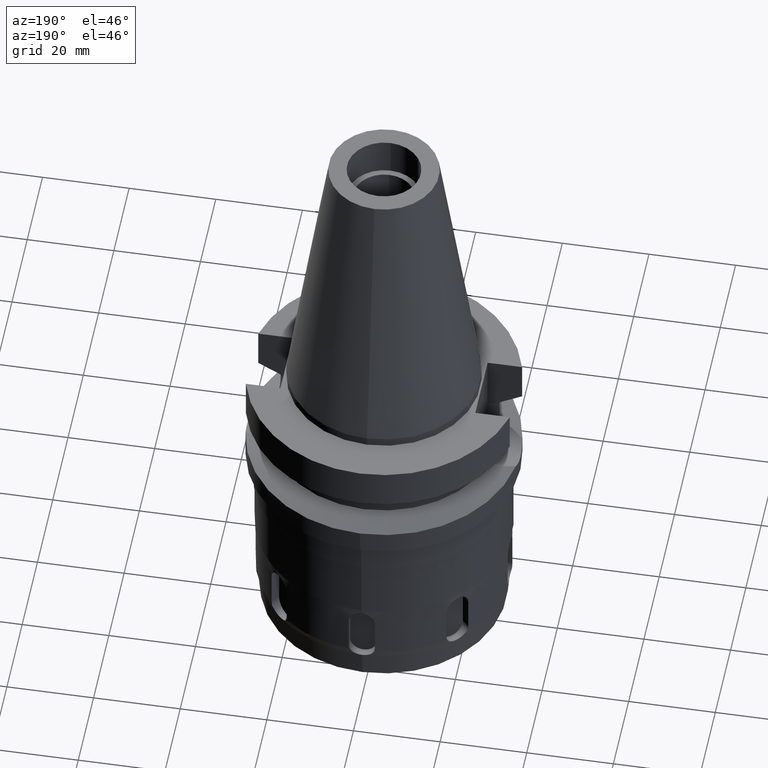
[diagram: clean part render]
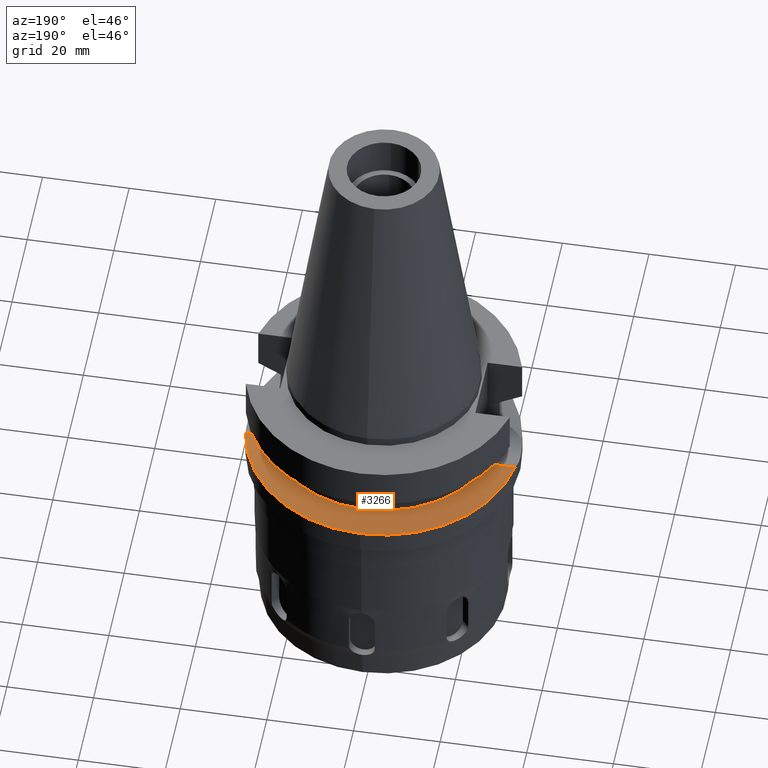
[diagram: same view with one face highlighted and labeled with its STEP entity id]
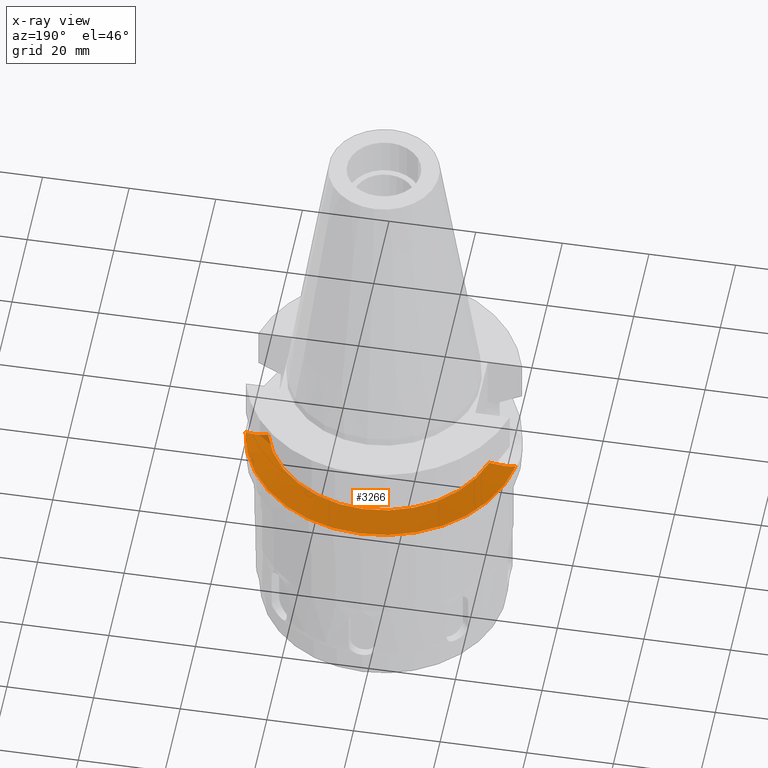
[diagram: x-ray of the same camera — body ghosted, the highlighted face saturated]
A machine part, auxiliary view. The second image highlights one B-rep face of the part: STEP entity #3266.
The next image is the same camera in x-ray: the body ghosted, the highlighted face saturated — about 1% of this face is hidden behind the body in this view.
In plain terms, the highlighted conical surface has half-angle 60 deg.
Its self-contained STEP definition (entity closure, byte-faithful):
#371=CARTESIAN_POINT('',(2.553175183775E1,7.097862220093E0,-1.874774300139E1));
#444=CARTESIAN_POINT('',(-3.117899877609E1,4.485536235554E0,-2.163449434733E1));
#445=CARTESIAN_POINT('',(-3.092699572936E1,4.676723045763E0,-2.150620111820E1));
#446=CARTESIAN_POINT('',(-3.037704794003E1,5.058447514772E0,-2.122611318917E1));
#447=CARTESIAN_POINT('',(-2.941603995076E1,5.613847051818E0,-2.073612037933E1));
#448=CARTESIAN_POINT('',(-2.830215788924E1,6.147747117254E0,-2.016735905456E1));
#449=CARTESIAN_POINT('',(-2.702522019392E1,6.649226031568E0,-1.951411904282E1));
#450=CARTESIAN_POINT('',(-2.604943356764E1,6.955560383382E0,-1.901370065842E1));
#451=CARTESIAN_POINT('',(-2.553175183775E1,7.097862220093E0,-1.874774300139E1));
#553=CARTESIAN_POINT('',(3.117899877609E1,4.485536235554E0,-2.163449434733E1));
#565=CARTESIAN_POINT('',(0.E0,0.E0,-2.163449434733E1));
#566=DIRECTION('',(0.E0,0.E0,-1.E0));
#567=DIRECTION('',(-9.898094849553E-1,1.423979757319E-1,0.E0));
#568=AXIS2_PLACEMENT_3D('',#565,#566,#567);
#573=CARTESIAN_POINT('',(0.E0,0.E0,-2.163449434733E1));
#574=DIRECTION('',(0.E0,0.E0,-1.E0));
#575=DIRECTION('',(0.E0,1.E0,0.E0));
#576=AXIS2_PLACEMENT_3D('',#573,#574,#575);
#581=CARTESIAN_POINT('',(3.117899877609E1,4.485536235554E0,-2.163449434733E1));
#582=CARTESIAN_POINT('',(3.081593527875E1,4.760981127439E0,-2.144966091353E1));
#583=CARTESIAN_POINT('',(3.002375893826E1,5.294920770372E0,-2.104617987611E1));
#584=CARTESIAN_POINT('',(2.847559446419E1,6.083127796492E0,-2.025610687060E1));
#585=CARTESIAN_POINT('',(2.704649779873E1,6.643168922724E0,-1.952505867735E1));
#586=CARTESIAN_POINT('',(2.603714510441E1,6.958938271351E0,-1.900738749204E1));
#587=CARTESIAN_POINT('',(2.553175183775E1,7.097862220093E0,-1.874774300139E1));
#592=CARTESIAN_POINT('',(0.E0,0.E0,-1.874774300139E1));
#593=DIRECTION('',(0.E0,0.E0,1.E0));
#594=DIRECTION('',(9.634623335001E-1,2.678438573620E-1,0.E0));
#595=AXIS2_PLACEMENT_3D('',#592,#593,#594);
#600=CARTESIAN_POINT('',(0.E0,0.E0,-1.874774300139E1));
#601=DIRECTION('',(0.E0,0.E0,1.E0));
#602=DIRECTION('',(0.E0,1.E0,0.E0));
#603=AXIS2_PLACEMENT_3D('',#600,#601,#602);
#2709=VERTEX_POINT('',#553);
#2711=CARTESIAN_POINT('',(0.E0,3.15E1,-2.163449434733E1));
#2712=VERTEX_POINT('',#2711);
#2725=VERTEX_POINT('',#371);
#2730=VERTEX_POINT('',#444);
#2731=VERTEX_POINT('',#451);
#2732=CARTESIAN_POINT('',(0.E0,2.65E1,-1.874774300139E1));
#2733=VERTEX_POINT('',#2732);
#3252=CARTESIAN_POINT('',(0.E0,0.E0,-2.019111867436E1));
#3253=DIRECTION('',(0.E0,0.E0,-1.E0));
#3254=DIRECTION('',(0.E0,-1.E0,0.E0));
#3255=AXIS2_PLACEMENT_3D('',#3252,#3253,#3254);
#3256=CONICAL_SURFACE('',#3255,2.9E1,6.E1);
#3257=ORIENTED_EDGE('',*,*,#3184,.F.);
#3259=ORIENTED_EDGE('',*,*,#3258,.T.);
#3260=ORIENTED_EDGE('',*,*,#3240,.T.);
#3261=ORIENTED_EDGE('',*,*,#3228,.T.);
#3262=ORIENTED_EDGE('',*,*,#3116,.T.);
#3263=ORIENTED_EDGE('',*,*,#3114,.T.);
#3264=EDGE_LOOP('',(#3257,#3259,#3260,#3261,#3262,#3263));
#3265=FACE_OUTER_BOUND('',#3264,.F.);
#452=B_SPLINE_CURVE_WITH_KNOTS('',3,(#444,#445,#446,#447,#448,#449,#450,#451),
.UNSPECIFIED.,.F.,.F.,(4,1,1,1,1,4),(0.E0,2.E-1,4.E-1,6.E-1,8.E-1,1.E0),
.UNSPECIFIED.);
#569=CIRCLE('',#568,3.15E1);
#577=CIRCLE('',#576,3.15E1);
#588=B_SPLINE_CURVE_WITH_KNOTS('',3,(#581,#582,#583,#584,#585,#586,#587),
.UNSPECIFIED.,.F.,.F.,(4,1,1,1,4),(0.E0,2.5E-1,5.E-1,7.5E-1,1.E0),
.UNSPECIFIED.);
#596=CIRCLE('',#595,2.65E1);
#604=CIRCLE('',#603,2.65E1);
#3114=EDGE_CURVE('',#2733,#2731,#604,.T.);
#3116=EDGE_CURVE('',#2725,#2733,#596,.T.);
#3184=EDGE_CURVE('',#2730,#2731,#452,.T.);
#3228=EDGE_CURVE('',#2709,#2725,#588,.T.);
#3240=EDGE_CURVE('',#2712,#2709,#577,.T.);
#3258=EDGE_CURVE('',#2730,#2712,#569,.T.);
#3266=ADVANCED_FACE('',(#3265),#3256,.T.);